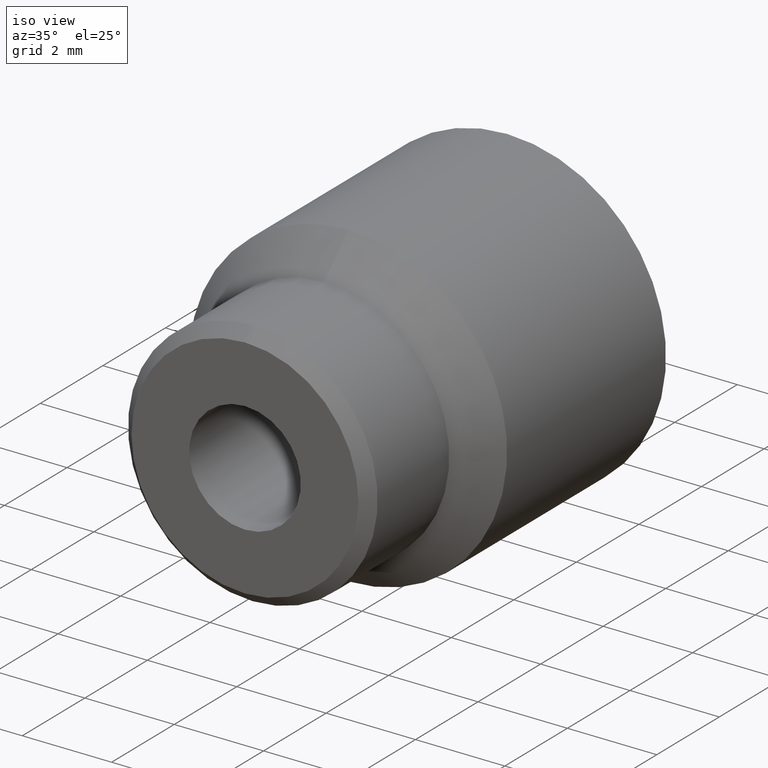
[diagram: clean part render]
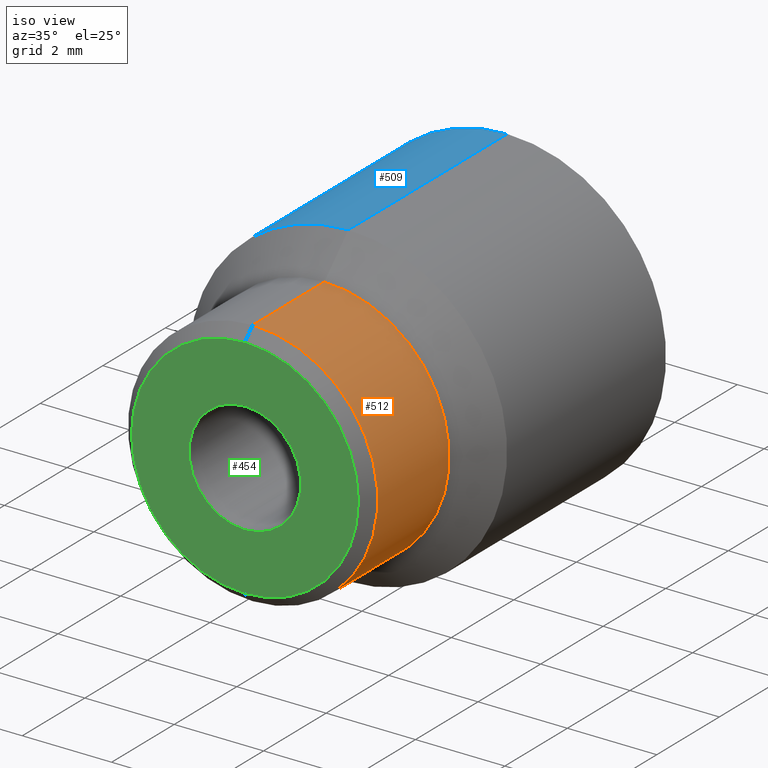
[diagram: same view with three faces highlighted in distinct colors, each labeled with its STEP entity id]
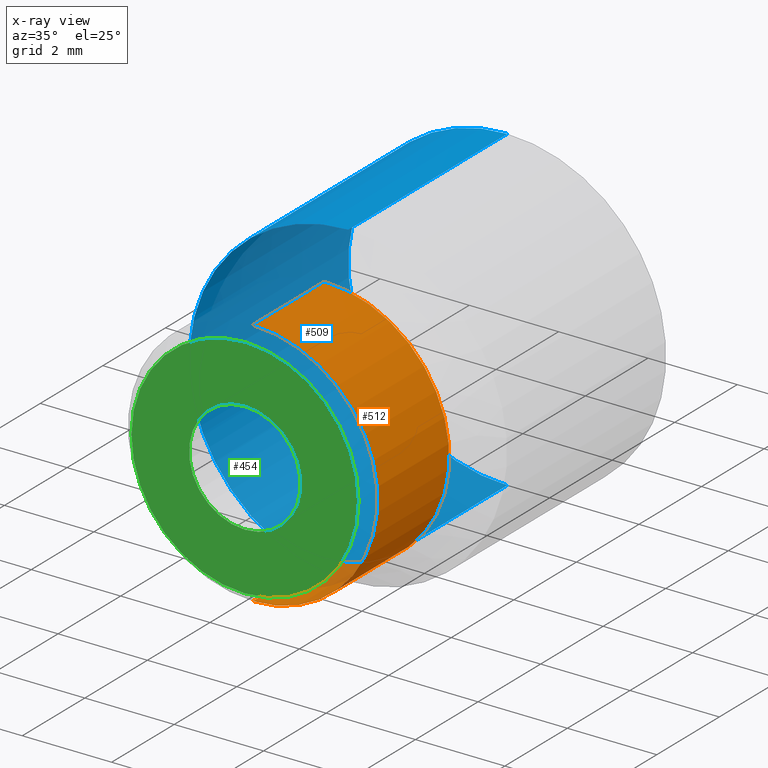
[diagram: x-ray of the same camera — body ghosted, the three highlighted faces saturated]
A machine part, iso view with three faces highlighted in distinct colors.
The next image is the same camera in x-ray (body ghosted, the three faces saturated) — at least one of them is partly hidden behind the body in this view.
Their STEP definitions:

[orange] entity #512 — the highlighted cylindrical surface (partial cylindrical patch) has radius 2.794 mm, axis along (-0, 1, -0).
#4 = DIRECTION ( 'NONE',  ( -0.0000000000000000000, 1.000000000000000000, -0.0000000000000000000 ) ) ;
#58 = DIRECTION ( 'NONE',  ( -0.0000000000000000000, 1.000000000000000000, -0.0000000000000000000 ) ) ;
#70 = CARTESIAN_POINT ( 'NONE',  ( -0.8936271735354411900, 0.3858041395763716100, 0.2684913485094972400 ) ) ;
#110 = CARTESIAN_POINT ( 'NONE',  ( -0.8936271735354411900, 0.2958041395763715800, 0.04849134850949712200 ) ) ;
#127 = CARTESIAN_POINT ( 'NONE',  ( -0.8936271735354411900, 0.7798699709781208300, 0.04849134850949712200 ) ) ;
#144 = DIRECTION ( 'NONE',  ( 0.0000000000000000000, 0.0000000000000000000, 1.000000000000000000 ) ) ;
#149 = DIRECTION ( 'NONE',  ( -0.0000000000000000000, 1.000000000000000000, -0.0000000000000000000 ) ) ;
#170 = DIRECTION ( 'NONE',  ( 0.0000000000000000000, 0.0000000000000000000, 1.000000000000000000 ) ) ;
#174 = CARTESIAN_POINT ( 'NONE',  ( -0.8936271735354411900, 0.7798699709781208300, 0.1584913485094971700 ) ) ;
#176 = CARTESIAN_POINT ( 'NONE',  ( -0.8936271735354411900, 0.7798699709781208300, 0.2684913485094972400 ) ) ;
#230 = CARTESIAN_POINT ( 'NONE',  ( -0.8936271735354411900, 0.2958041395763715800, 0.1584913485094971700 ) ) ;
#240 = DIRECTION ( 'NONE',  ( -0.0000000000000000000, 1.000000000000000000, -0.0000000000000000000 ) ) ;
#275 = DIRECTION ( 'NONE',  ( 0.0000000000000000000, 0.0000000000000000000, 1.000000000000000000 ) ) ;
#288 = CARTESIAN_POINT ( 'NONE',  ( -0.8936271735354411900, 0.3858041395763716100, 0.1584913485094971700 ) ) ;
#323 = DIRECTION ( 'NONE',  ( -0.0000000000000000000, 1.000000000000000000, -0.0000000000000000000 ) ) ;
#338 = CIRCLE ( 'NONE', #346, 0.1100000000000000600 ) ;
#346 = AXIS2_PLACEMENT_3D ( 'NONE', #230, #323, #144 ) ;
#348 = VECTOR ( 'NONE', #4, 39.37007874015748100 ) ;
#363 = VECTOR ( 'NONE', #240, 39.37007874015748100 ) ;
#368 = CIRCLE ( 'NONE', #370, 0.1100000000000000600 ) ;
#370 = AXIS2_PLACEMENT_3D ( 'NONE', #288, #149, #170 ) ;
#471 = EDGE_CURVE ( 'NONE', #795, #674, #338, .T. ) ;
#472 = EDGE_CURVE ( 'NONE', #674, #821, #659, .T. ) ;
#482 = EDGE_CURVE ( 'NONE', #795, #731, #668, .T. ) ;
#488 = EDGE_CURVE ( 'NONE', #731, #821, #368, .T. ) ;
#512 = ADVANCED_FACE ( 'NONE', ( #868 ), #869, .T. ) ;
#608 = AXIS2_PLACEMENT_3D ( 'NONE', #174, #58, #275 ) ;
#628 = CARTESIAN_POINT ( 'NONE',  ( -0.8936271735354411900, 0.3858041395763716100, 0.04849134850949714200 ) ) ;
#640 = CARTESIAN_POINT ( 'NONE',  ( -0.8936271735354411900, 0.2958041395763715800, 0.2684913485094972400 ) ) ;
#659 = LINE ( 'NONE', #127, #348 ) ;
#665 = EDGE_LOOP ( 'NONE', ( #690, #677, #730, #770 ) ) ;
#668 = LINE ( 'NONE', #176, #363 ) ;
#674 = VERTEX_POINT ( 'NONE', #110 ) ;
#677 = ORIENTED_EDGE ( 'NONE', *, *, #472, .T. ) ;
#690 = ORIENTED_EDGE ( 'NONE', *, *, #471, .T. ) ;
#730 = ORIENTED_EDGE ( 'NONE', *, *, #488, .F. ) ;
#731 = VERTEX_POINT ( 'NONE', #70 ) ;
#770 = ORIENTED_EDGE ( 'NONE', *, *, #482, .F. ) ;
#795 = VERTEX_POINT ( 'NONE', #640 ) ;
#821 = VERTEX_POINT ( 'NONE', #628 ) ;
#868 = FACE_OUTER_BOUND ( 'NONE', #665, .T. ) ;
#869 = CYLINDRICAL_SURFACE ( 'NONE', #608, 0.1100000000000000600 ) ;

[blue] entity #509 — the highlighted cylindrical surface (partial cylindrical patch) has radius 3.556 mm, axis along (-0, 1, -0).
#22 = CARTESIAN_POINT ( 'NONE',  ( -0.8936271735354411900, 0.6158041395763715900, 0.2984913485094972100 ) ) ;
#24 = DIRECTION ( 'NONE',  ( 0.0000000000000000000, 0.0000000000000000000, 1.000000000000000000 ) ) ;
#82 = CARTESIAN_POINT ( 'NONE',  ( -0.8936271735354411900, 0.4158041395763716300, 0.1584913485094971700 ) ) ;
#83 = DIRECTION ( 'NONE',  ( -0.0000000000000000000, 1.000000000000000000, -0.0000000000000000000 ) ) ;
#85 = CARTESIAN_POINT ( 'NONE',  ( -0.8936271735354411900, 0.7798699709781208300, 0.1584913485094971700 ) ) ;
#95 = DIRECTION ( 'NONE',  ( 0.0000000000000000000, 0.0000000000000000000, 1.000000000000000000 ) ) ;
#119 = DIRECTION ( 'NONE',  ( 0.0000000000000000000, 0.0000000000000000000, 1.000000000000000000 ) ) ;
#154 = CARTESIAN_POINT ( 'NONE',  ( -0.8936271735354411900, 0.4158041395763716300, 0.2984913485094972100 ) ) ;
#201 = DIRECTION ( 'NONE',  ( -0.0000000000000000000, 1.000000000000000000, -0.0000000000000000000 ) ) ;
#212 = DIRECTION ( 'NONE',  ( -0.0000000000000000000, 1.000000000000000000, -0.0000000000000000000 ) ) ;
#213 = DIRECTION ( 'NONE',  ( -0.0000000000000000000, 1.000000000000000000, -0.0000000000000000000 ) ) ;
#217 = CARTESIAN_POINT ( 'NONE',  ( -0.8936271735354411900, 0.4158041395763716300, 0.01849134850949713700 ) ) ;
#236 = CARTESIAN_POINT ( 'NONE',  ( -0.8936271735354411900, 0.6158041395763715900, 0.1584913485094971700 ) ) ;
#252 = CARTESIAN_POINT ( 'NONE',  ( -0.8936271735354411900, 0.7798699709781208300, 0.01849134850949713700 ) ) ;
#280 = CARTESIAN_POINT ( 'NONE',  ( -0.8936271735354411900, 0.7798699709781208300, 0.2984913485094972100 ) ) ;
#293 = DIRECTION ( 'NONE',  ( -0.0000000000000000000, 1.000000000000000000, -0.0000000000000000000 ) ) ;
#327 = CARTESIAN_POINT ( 'NONE',  ( -0.8936271735354411900, 0.6158041395763715900, 0.01849134850949713700 ) ) ;
#351 = VECTOR ( 'NONE', #213, 39.37007874015748100 ) ;
#447 = VECTOR ( 'NONE', #83, 39.37007874015748100 ) ;
#458 = EDGE_CURVE ( 'NONE', #744, #765, #708, .T. ) ;
#474 = EDGE_CURVE ( 'NONE', #740, #760, #646, .T. ) ;
#509 = ADVANCED_FACE ( 'NONE', ( #895 ), #871, .T. ) ;
#539 = EDGE_CURVE ( 'NONE', #744, #740, #592, .T. ) ;
#543 = EDGE_CURVE ( 'NONE', #765, #760, #584, .T. ) ;
#558 = AXIS2_PLACEMENT_3D ( 'NONE', #82, #212, #95 ) ;
#563 = AXIS2_PLACEMENT_3D ( 'NONE', #236, #201, #24 ) ;
#584 = CIRCLE ( 'NONE', #563, 0.1400000000000000400 ) ;
#592 = CIRCLE ( 'NONE', #558, 0.1400000000000000400 ) ;
#598 = AXIS2_PLACEMENT_3D ( 'NONE', #85, #293, #119 ) ;
#646 = LINE ( 'NONE', #280, #351 ) ;
#708 = LINE ( 'NONE', #252, #447 ) ;
#740 = VERTEX_POINT ( 'NONE', #154 ) ;
#744 = VERTEX_POINT ( 'NONE', #217 ) ;
#753 = ORIENTED_EDGE ( 'NONE', *, *, #543, .F. ) ;
#760 = VERTEX_POINT ( 'NONE', #22 ) ;
#765 = VERTEX_POINT ( 'NONE', #327 ) ;
#774 = EDGE_LOOP ( 'NONE', ( #811, #804, #779, #753 ) ) ;
#779 = ORIENTED_EDGE ( 'NONE', *, *, #474, .T. ) ;
#804 = ORIENTED_EDGE ( 'NONE', *, *, #539, .T. ) ;
#811 = ORIENTED_EDGE ( 'NONE', *, *, #458, .F. ) ;
#871 = CYLINDRICAL_SURFACE ( 'NONE', #598, 0.1400000000000000400 ) ;
#895 = FACE_OUTER_BOUND ( 'NONE', #774, .T. ) ;

[green] entity #454 — the highlighted planar face has unit normal (-0, 1, 0).
#37 = CARTESIAN_POINT ( 'NONE',  ( -0.8936271735354411900, 0.2858041395763716300, 0.1584913485094971700 ) ) ;
#38 = DIRECTION ( 'NONE',  ( -0.0000000000000000000, 1.000000000000000000, -0.0000000000000000000 ) ) ;
#40 = DIRECTION ( 'NONE',  ( 0.0000000000000000000, 0.0000000000000000000, 1.000000000000000000 ) ) ;
#97 = CARTESIAN_POINT ( 'NONE',  ( -0.8936271735354411900, 0.2858041395763716300, 0.1092787500843002800 ) ) ;
#98 = DIRECTION ( 'NONE',  ( -0.0000000000000000000, 1.000000000000000000, -0.0000000000000000000 ) ) ;
#114 = DIRECTION ( 'NONE',  ( -0.0000000000000000000, 1.000000000000000000, 0.0000000000000000000 ) ) ;
#136 = DIRECTION ( 'NONE',  ( 0.0000000000000000000, 0.0000000000000000000, 1.000000000000000000 ) ) ;
#157 = DIRECTION ( 'NONE',  ( 0.0000000000000000000, 0.0000000000000000000, 1.000000000000000000 ) ) ;
#160 = DIRECTION ( 'NONE',  ( 0.0000000000000000000, 0.0000000000000000000, 1.000000000000000000 ) ) ;
#206 = CARTESIAN_POINT ( 'NONE',  ( -0.8936271735354411900, 0.2858041395763716300, 0.1584913485094971700 ) ) ;
#218 = CARTESIAN_POINT ( 'NONE',  ( -0.8936271735354411900, 0.2858041395763716300, 0.2077039469346940700 ) ) ;
#253 = DIRECTION ( 'NONE',  ( -0.0000000000000000000, 1.000000000000000000, -0.0000000000000000000 ) ) ;
#261 = CARTESIAN_POINT ( 'NONE',  ( -0.7936271735354411000, 0.2858041395763716300, 0.1584913485094971700 ) ) ;
#278 = CARTESIAN_POINT ( 'NONE',  ( -0.8936271735354411900, 0.2858041395763716300, 0.1584913485094971700 ) ) ;
#279 = PLANE ( 'NONE',  #410 ) ;
#287 = DIRECTION ( 'NONE',  ( -0.0000000000000000000, 1.000000000000000000, -0.0000000000000000000 ) ) ;
#292 = CARTESIAN_POINT ( 'NONE',  ( -0.8936271735354411900, 0.2858041395763716300, 0.1584913485094971700 ) ) ;
#301 = DIRECTION ( 'NONE',  ( 0.0000000000000000000, 0.0000000000000000000, 1.000000000000000000 ) ) ;
#343 = CIRCLE ( 'NONE', #345, 0.1000000000000000600 ) ;
#345 = AXIS2_PLACEMENT_3D ( 'NONE', #206, #253, #157 ) ;
#356 = CIRCLE ( 'NONE', #401, 0.1000000000000000600 ) ;
#398 = CIRCLE ( 'NONE', #439, 0.04921259842519689500 ) ;
#401 = AXIS2_PLACEMENT_3D ( 'NONE', #292, #98, #136 ) ;
#410 = AXIS2_PLACEMENT_3D ( 'NONE', #261, #114, #160 ) ;
#439 = AXIS2_PLACEMENT_3D ( 'NONE', #278, #38, #301 ) ;
#454 = ADVANCED_FACE ( 'NONE', ( #696, #650 ), #279, .F. ) ;
#465 = EDGE_CURVE ( 'NONE', #673, #722, #398, .T. ) ;
#470 = EDGE_CURVE ( 'NONE', #820, #809, #343, .T. ) ;
#501 = EDGE_CURVE ( 'NONE', #809, #820, #356, .T. ) ;
#529 = EDGE_CURVE ( 'NONE', #722, #673, #556, .T. ) ;
#556 = CIRCLE ( 'NONE', #593, 0.04921259842519689500 ) ;
#593 = AXIS2_PLACEMENT_3D ( 'NONE', #37, #287, #40 ) ;
#638 = CARTESIAN_POINT ( 'NONE',  ( -0.8936271735354411900, 0.2858041395763716300, 0.05849134850949711700 ) ) ;
#642 = CARTESIAN_POINT ( 'NONE',  ( -0.8936271735354411900, 0.2858041395763716300, 0.2584913485094972300 ) ) ;
#649 = ORIENTED_EDGE ( 'NONE', *, *, #465, .T. ) ;
#650 = FACE_BOUND ( 'NONE', #777, .T. ) ;
#673 = VERTEX_POINT ( 'NONE', #97 ) ;
#682 = ORIENTED_EDGE ( 'NONE', *, *, #529, .T. ) ;
#696 = FACE_OUTER_BOUND ( 'NONE', #758, .T. ) ;
#721 = ORIENTED_EDGE ( 'NONE', *, *, #470, .F. ) ;
#722 = VERTEX_POINT ( 'NONE', #218 ) ;
#735 = ORIENTED_EDGE ( 'NONE', *, *, #501, .F. ) ;
#758 = EDGE_LOOP ( 'NONE', ( #721, #735 ) ) ;
#777 = EDGE_LOOP ( 'NONE', ( #682, #649 ) ) ;
#809 = VERTEX_POINT ( 'NONE', #638 ) ;
#820 = VERTEX_POINT ( 'NONE', #642 ) ;